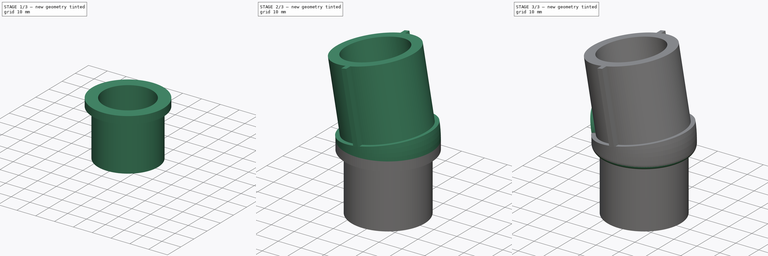
[diagram: build sequence overview — one tinted view per stage of 3, left to right]
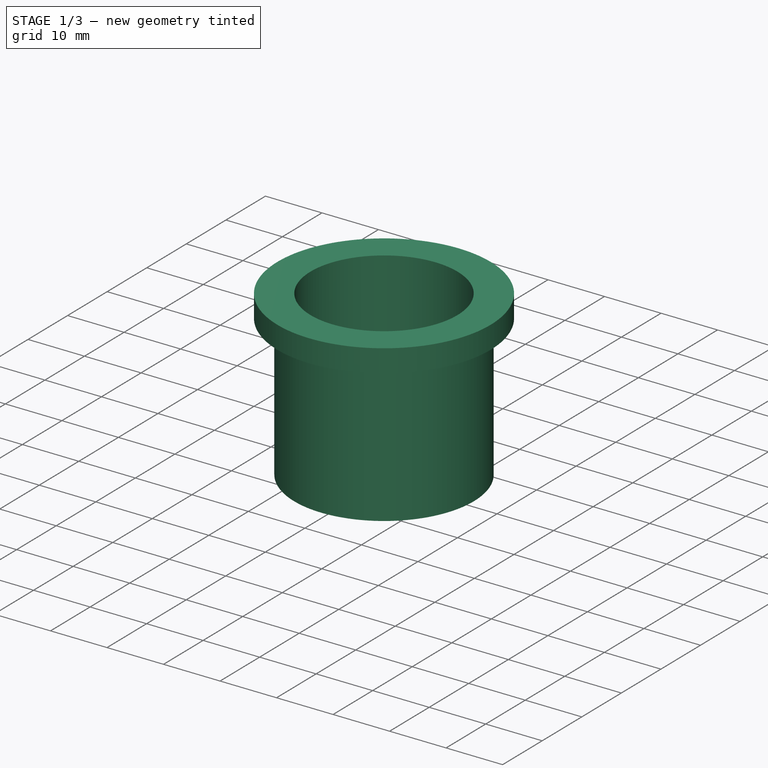
[diagram: stage 1 of 3 — iso view after this stage's code; geometry added in this stage tinted green]
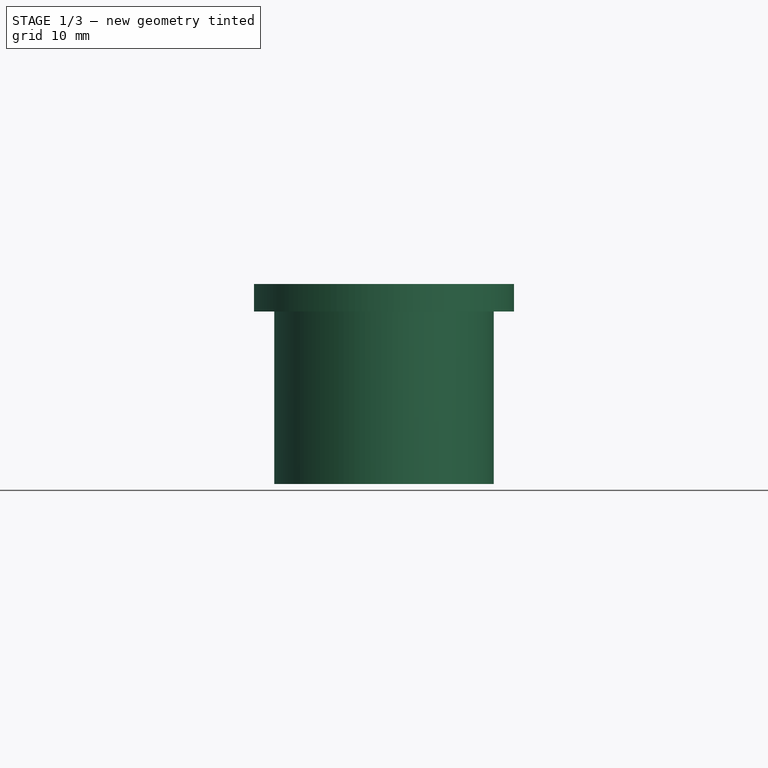
[diagram: stage 1 of 3 — front view after this stage's code; geometry added in this stage tinted green]
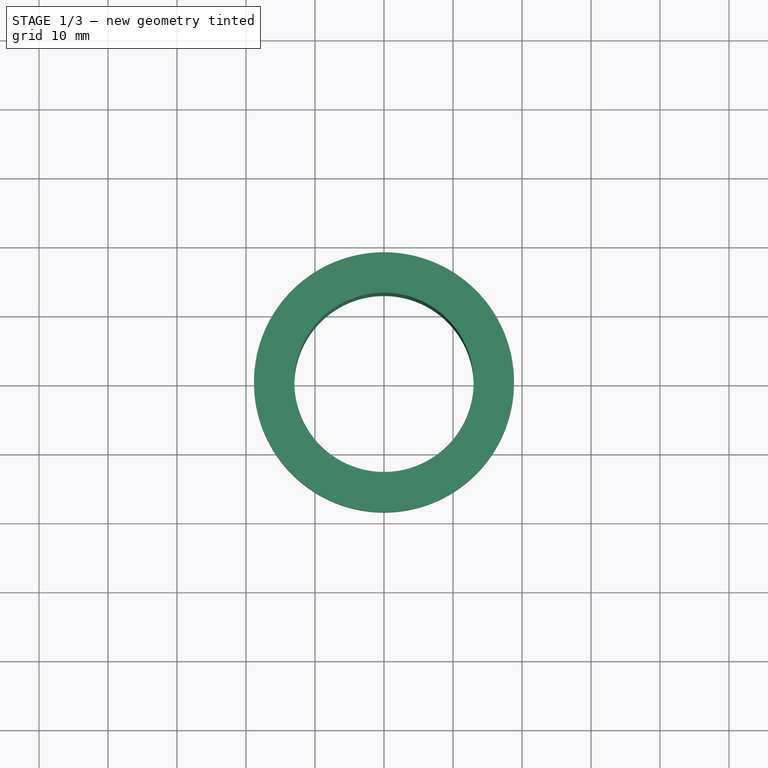
[diagram: stage 1 of 3 — top view after this stage's code; geometry added in this stage tinted green]
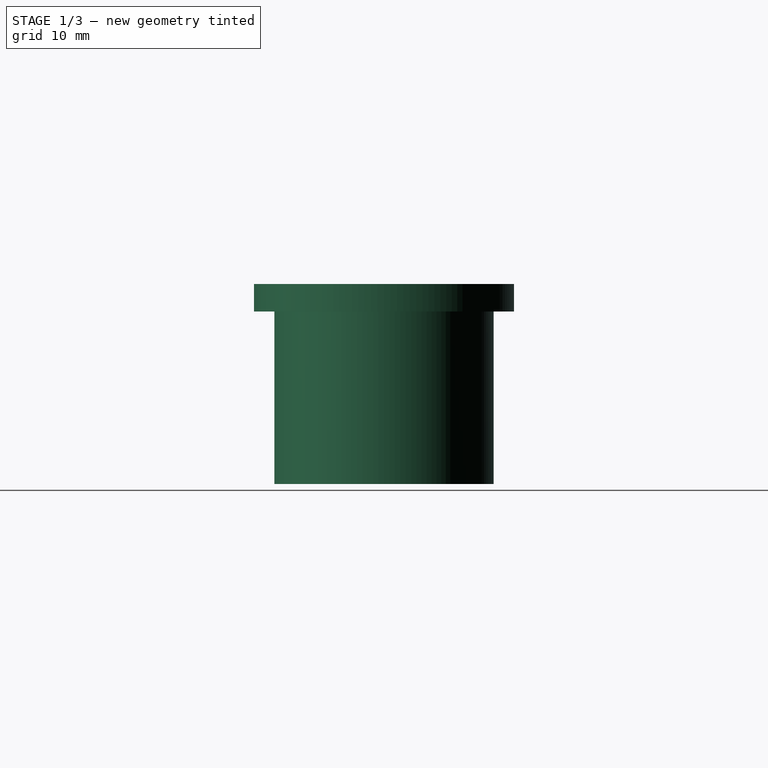
[diagram: stage 1 of 3 — right view after this stage's code; geometry added in this stage tinted green]
FCSTD DOCUMENT  (FreeCAD 0.20R29177 +426 (Git))
Label: Dyson Dustshoe Adapter
License: All rights reserved
LicenseURL: http://en.wikipedia.org/wiki/All_rights_reserved
objects: Sketcher::SketchObject×8, PartDesign::Pad×4, PartDesign::Pocket×2, PartDesign::Plane×2, PartDesign::AdditivePipe×1, PartDesign::Fillet×1, PartDesign::Body×1
note: 27 computed .brp shape members not serialized (recipe doc carries the construction recipe); baked Part::Feature solids carry a one-line shape summary decoded from their .brp

FEATURE [Sketcher::SketchObject] Sketch
  FullyConstrained = true
  MapMode = 5
  Support = -> [XY_Plane]
  sketch-geometry (1):
    g0: Circle CenterX=0 CenterY=0 CenterZ=0 NormalX=0 NormalY=0 NormalZ=1 AngleXU=0 Radius=15.9
  constraints (2):
    c: Coincident(g0,g-1)
    c: Diameter(g0) = 31.8
FEATURE [PartDesign::Pad] Pad
  Direction = (0,0,1)
  Length = 25
  Length2 = 10
  Profile = -> Sketch
  ReferenceAxis = -> Sketch [N_Axis]
  Type = 0
FEATURE [Sketcher::SketchObject] Sketch001
  FullyConstrained = true
  MapMode = 5
  Placement = pos=(0,0,25) rot=(0,0,1;0rad)
  Support = -> [Pad]
  sketch-geometry (1):
    g0: Circle CenterX=0 CenterY=0 CenterZ=0 NormalX=0 NormalY=0 NormalZ=1 AngleXU=0 Radius=18.85
  constraints (2):
    c: Coincident(g0,g-1)
    c: Diameter(g0) = 37.7
FEATURE [PartDesign::Pad] Pad001
  BaseFeature = -> Pad
  Direction = (0,0,1)
  Length = 4
  Length2 = 10
  Profile = -> Sketch001
  ReferenceAxis = -> Sketch001 [N_Axis]
  Type = 0
FEATURE [Sketcher::SketchObject] Sketch002
  FullyConstrained = true
  MapMode = 5
  Placement = pos=(0,0,29) rot=(0,0,1;0rad)
  Support = -> [Pad001]
  sketch-geometry (1):
    g0: Circle CenterX=0 CenterY=0 CenterZ=0 NormalX=0 NormalY=0 NormalZ=1 AngleXU=0 Radius=13
  constraints (2):
    c: Coincident(g0,g-1)
    c: Diameter(g0) = 26
FEATURE [PartDesign::Pocket] Pocket
  BaseFeature = -> Pad001
  Direction = (0,0,-1)
  Length = 5
  Length2 = 5
  Profile = -> Sketch002
  ReferenceAxis = -> Sketch002 [N_Axis]
  Type = 1
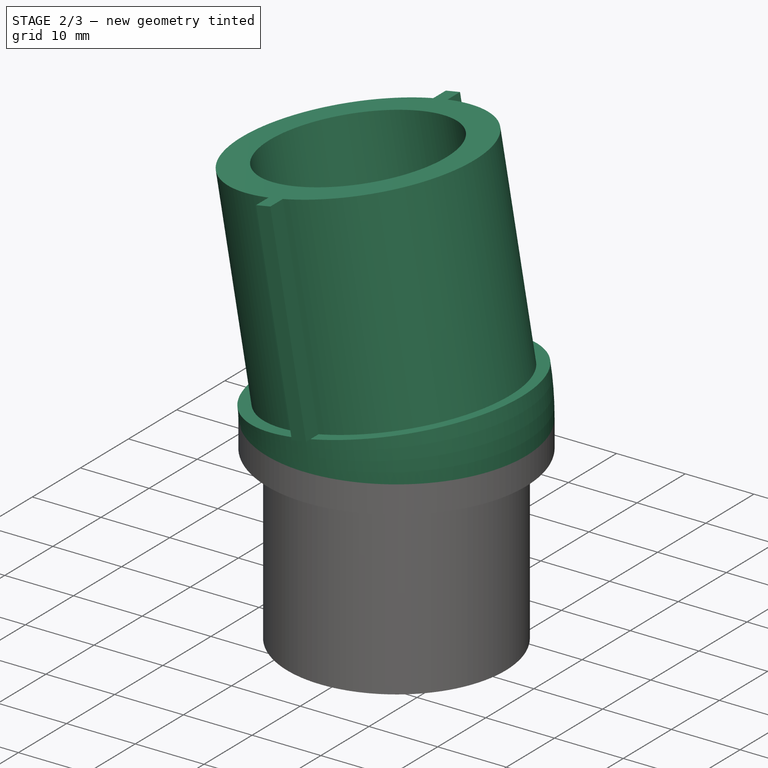
[diagram: stage 2 of 3 — iso view after this stage's code; geometry added in this stage tinted green]
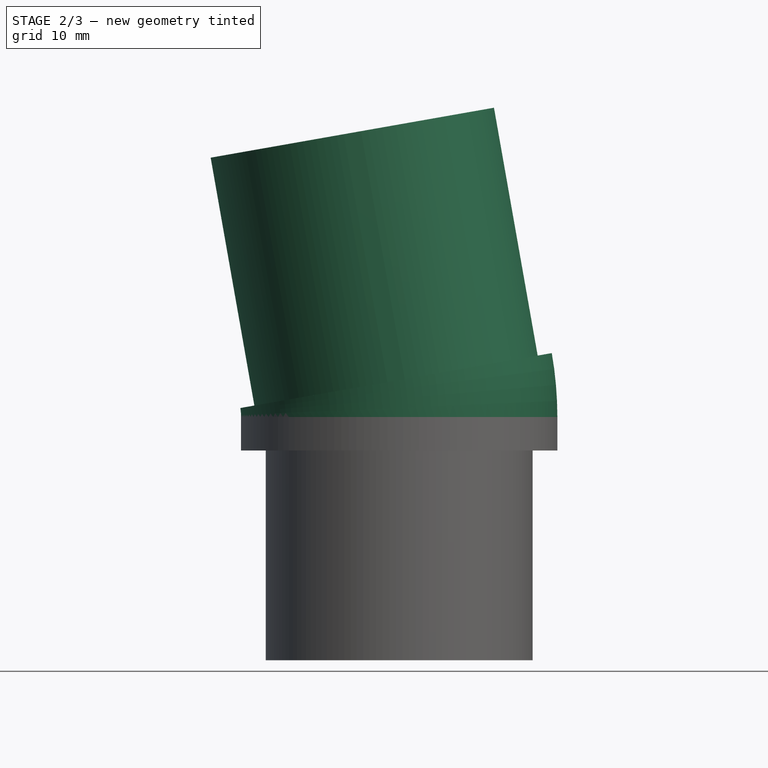
[diagram: stage 2 of 3 — front view after this stage's code; geometry added in this stage tinted green]
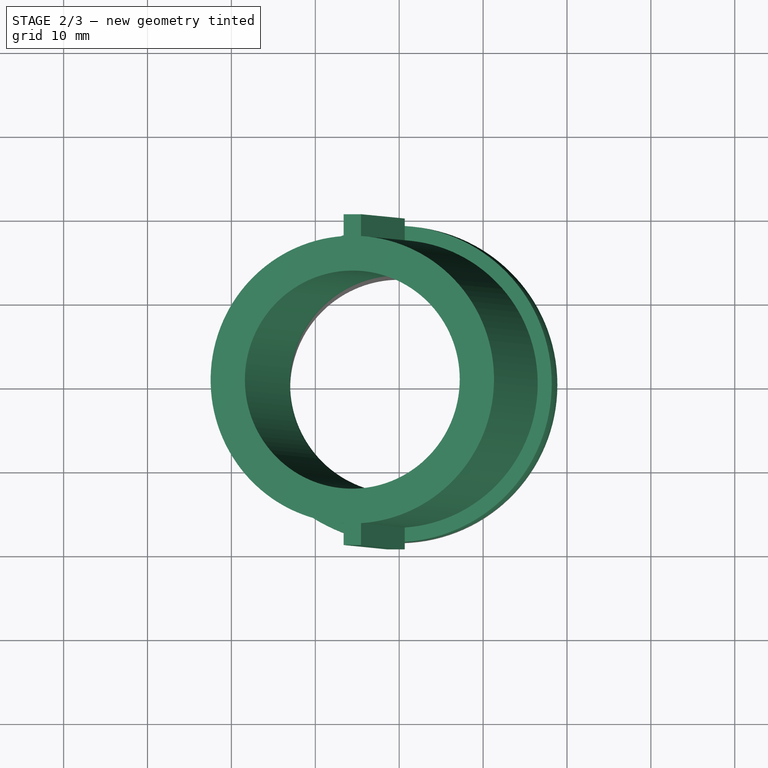
[diagram: stage 2 of 3 — top view after this stage's code; geometry added in this stage tinted green]
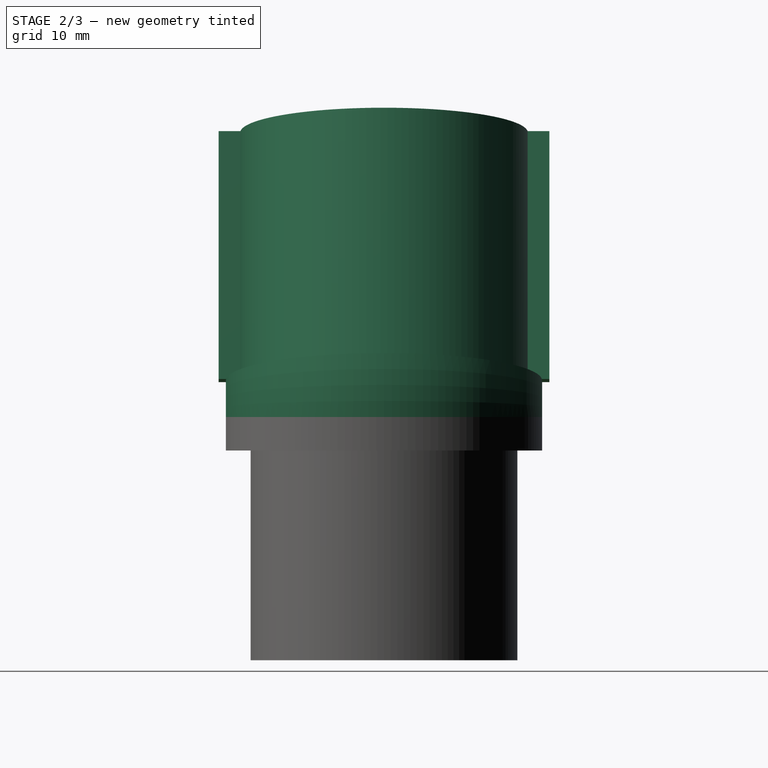
[diagram: stage 2 of 3 — right view after this stage's code; geometry added in this stage tinted green]
FEATURE [Sketcher::SketchObject] Sketch003
  ExternalGeometry = -> [Pocket]
  FullyConstrained = true
  MapMode = 5
  Placement = pos=(0,0,0) rot=(1,0,0;1.5708rad)
  Support = -> [XZ_Plane]
  sketch-geometry (3):
    g0: ArcOfCircle CenterX=-25 CenterY=29 CenterZ=0 NormalX=0 NormalY=0 NormalZ=1 AngleXU=0 Radius=25 StartAngle=0 EndAngle=0.174533
    g1: LineSegment StartX=-0.379806 StartY=33.3412 StartZ=0 EndX=-25 EndY=29 EndZ=0
    g2: LineSegment StartX=-25 StartY=29 StartZ=0 EndX=0 EndY=29 EndZ=0
  constraints (8):
    c: PointOnObject(g0,g-3)
    c: Tangent(g0,g-2) = -1.5708
    c: Radius(g0) = 25
    c: Coincident(g1,g0)
    c: Coincident(g1,g0)
    c: Coincident(g2,g0)
    c: Coincident(g2,g0)
    c: Angle(g2,g1) = 0.174533
FEATURE [PartDesign::Plane] DatumPlane
  Length = 76.4183
  MapMode = 49
  Placement = pos=(-0.379806,7.4e-15,33.3412) rot=(-0.087156,0,0.996195;3.14159rad)
  ResizeMode = 0
  Support = -> [Sketch003]
  Width = 61.4031
FEATURE [Sketcher::SketchObject] Sketch004
  FullyConstrained = false
  MapMode = 5
  Placement = pos=(-0.379806,7.4e-15,33.3412) rot=(-0.087156,0,0.996195;3.14159rad)
  Support = -> [DatumPlane]
  sketch-geometry (9):
    g0: Circle CenterX=0 CenterY=0 CenterZ=0 NormalX=0 NormalY=0 NormalZ=1 AngleXU=0 Radius=13
    g1: ArcOfCircle CenterX=0 CenterY=0 CenterZ=0 NormalX=0 NormalY=0 NormalZ=1 AngleXU=0 Radius=17.15 StartAngle=1.63206 EndAngle=4.65113
    g2: LineSegment StartX=-1.05 StartY=19.7178 StartZ=0 EndX=1.05 EndY=19.7178 EndZ=0
    g3: LineSegment StartX=1.05 StartY=19.7178 StartZ=0 EndX=1.05 EndY=17.1178 EndZ=0
    g4: LineSegment StartX=-1.05 StartY=17.1178 StartZ=0 EndX=-1.05 EndY=19.7178 EndZ=0
    g5: LineSegment StartX=1.05001 StartY=-17.1178 StartZ=0 EndX=1.05001 EndY=-19.7178 EndZ=0
    g6: LineSegment StartX=1.05001 StartY=-19.7178 StartZ=0 EndX=-1.05001 EndY=-19.7178 EndZ=0
    g7: LineSegment StartX=-1.05001 StartY=-19.7178 StartZ=0 EndX=-1.05001 EndY=-17.1178 EndZ=0
    g8: ArcOfCircle CenterX=0 CenterY=0 CenterZ=0 NormalX=0 NormalY=0 NormalZ=1 AngleXU=0 Radius=17.15 StartAngle=4.77365 EndAngle=7.79272
  constraints (24):
    c: Coincident(g0,g-1)
    c: Diameter(g0) = 26
    c: Coincident(g1,g0)
    c: Diameter(g1) = 34.3
    c: Coincident(g2,g3)
    c: Coincident(g4,g2)
    c: Horizontal(g2)
    c: Vertical(g3)
    c: Vertical(g4)
    c: Coincident(g5,g6)
    c: Coincident(g6,g7)
    c: Horizontal(g6)
    c: Vertical(g5)
    c: Vertical(g7)
    c: Coincident(g8,g3)
    c: Coincident(g1,g4)
    c: Symmetric(g8,g1,g-2)
    c: DistanceY(g3,g3) = 2.6
    c: DistanceX(g2,g2) = 2.1
    c: Coincident(g1,g7)
    c: Coincident(g8,g5)
    c: Coincident(g1,g8)
    c: DistanceY(g5,g5) = 2.6
    c: Symmetric(g5,g1,g-2)
FEATURE [Sketcher::SketchObject] Sketch005
  ExternalGeometry = -> [Pocket]
  FullyConstrained = true
  MapMode = 5
  Placement = pos=(0,0,29) rot=(0,0,1;0rad)
  Support = -> [Pocket]
  sketch-geometry (2):
    g0: Circle CenterX=0 CenterY=0 CenterZ=0 NormalX=0 NormalY=0 NormalZ=1 AngleXU=0 Radius=13
    g1: Circle CenterX=0 CenterY=0 CenterZ=0 NormalX=0 NormalY=0 NormalZ=1 AngleXU=0 Radius=18.85
  constraints (4):
    c: Coincident(g0,g-4)
    c: Coincident(g1,g0)
    c: Equal(g1,g-3)
    c: Equal(g0,g-4)
FEATURE [PartDesign::AdditivePipe] AdditivePipe
  AuxilleryCurvelinear = true
  AuxillerySpineTangent = false
  BaseFeature = -> Pocket
  Binormal = (0,0,0)
  Mode = 0
  Profile = -> Sketch005
  Spine = -> Sketch003 [Edge1]
  SpineTangent = false
  Transformation = 0
  Transition = 0
FEATURE [PartDesign::Pad] Pad002
  BaseFeature = -> AdditivePipe
  Direction = (-0.173648,0,0.984808)
  Length = 30
  Length2 = 10
  Profile = -> Sketch004
  ReferenceAxis = -> Sketch004 [N_Axis]
  Type = 0
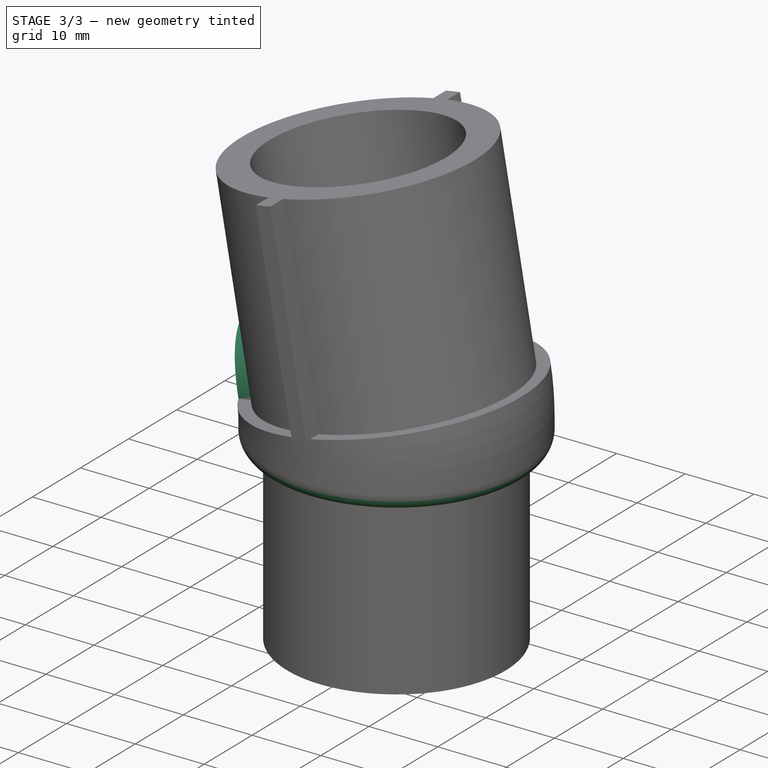
[diagram: stage 3 of 3 — iso view after this stage's code; geometry added in this stage tinted green]
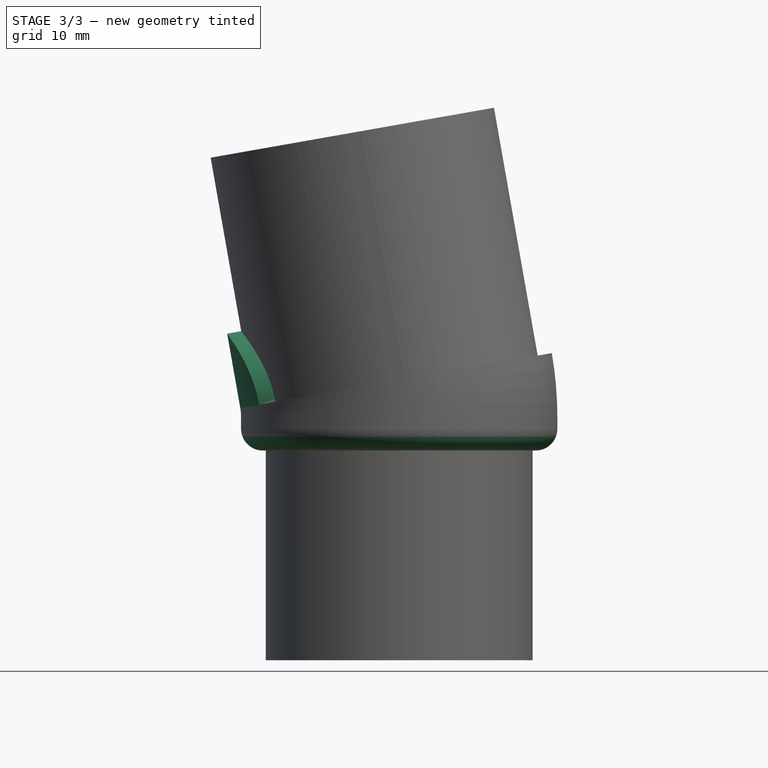
[diagram: stage 3 of 3 — front view after this stage's code; geometry added in this stage tinted green]
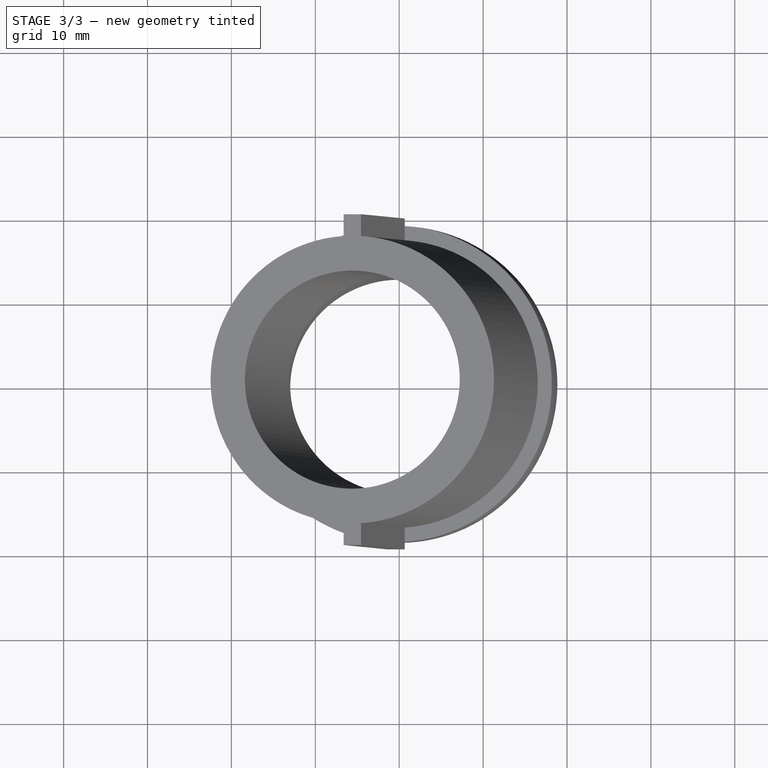
[diagram: stage 3 of 3 — top view after this stage's code; geometry added in this stage tinted green]
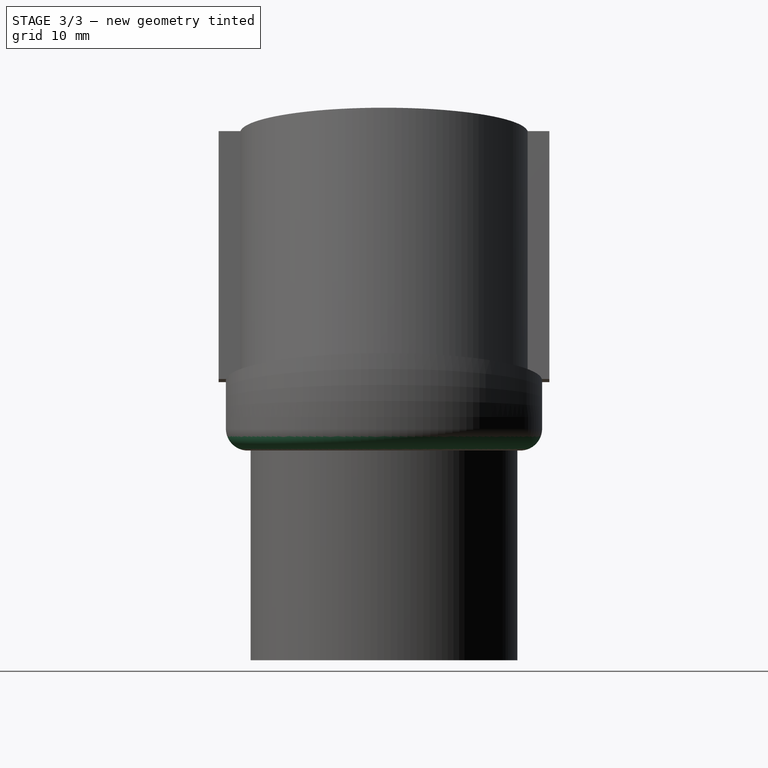
[diagram: stage 3 of 3 — right view after this stage's code; geometry added in this stage tinted green]
FEATURE [PartDesign::Plane] DatumPlane001
  AttachmentOffset = pos=(0,0,2) rot=(0,0,1;0rad)
  Length = 112.156
  MapMode = 45
  Placement = pos=(-16.1217,-2.153e-06,45.7969) rot=(0.766044,0,-0.642788;3.14159rad)
  ResizeMode = 0
  Support = -> [Pad002]
  Width = 64.0104
FEATURE [Sketcher::SketchObject] Sketch006
  ExternalGeometry = -> [Pad002]
  FullyConstrained = true
  MapMode = 5
  Placement = pos=(-16.1217,-2.153e-06,45.7969) rot=(0.766044,0,-0.642788;3.14159rad)
  Support = -> [DatumPlane001]
  sketch-geometry (2):
    g0: ArcOfCircle CenterX=15 CenterY=2.09816e-06 CenterZ=0 NormalX=0 NormalY=0 NormalZ=1 AngleXU=0 Radius=9 StartAngle=1.5708 EndAngle=4.71239
    g1: LineSegment StartX=15 StartY=9 StartZ=0 EndX=15 EndY=-9 EndZ=0
  constraints (6):
    c: Coincident(g0,g-4)
    c: PointOnObject(g0,g-3)
    c: PointOnObject(g0,g-4)
    c: Diameter(g0) = 18
    c: Coincident(g1,g0)
    c: Coincident(g1,g0)
FEATURE [PartDesign::Pad] Pad003
  BaseFeature = -> Pad002
  Direction = (-0.984808,-1.61397e-07,-0.173648)
  Length = 6
  Length2 = 10
  Profile = -> Sketch006
  ReferenceAxis = -> Sketch006 [N_Axis]
  Type = 0
FEATURE [Sketcher::SketchObject] Sketch007
  ExternalGeometry = -> [Pad003]
  FullyConstrained = true
  MapMode = 5
  Placement = pos=(-0.379806,7.4e-15,33.3412) rot=(-0.087156,0,0.996195;3.14159rad)
  Support = -> [DatumPlane]
  sketch-geometry (4):
    g0: ArcOfCircle CenterX=9e-16 CenterY=6.4e-15 CenterZ=0 NormalX=0 NormalY=0 NormalZ=1 AngleXU=0 Radius=18.85 StartAngle=5.66009 EndAngle=6.90628
    g1: LineSegment StartX=15.3076 StartY=11 StartZ=0 EndX=23.3076 EndY=11 EndZ=0
    g2: LineSegment StartX=23.3076 StartY=11 StartZ=0 EndX=23.3076 EndY=-11 EndZ=0
    g3: LineSegment StartX=23.3076 StartY=-11 StartZ=0 EndX=15.3076 EndY=-11 EndZ=0
  constraints (12):
    c: Vertical(g2)
    c: DistanceX(g1,g1) = 8
    c: Coincident(g2,g1)
    c: Coincident(g2,g3)
    c: Horizontal(g1)
    c: Horizontal(g3)
    c: Coincident(g0,g3)
    c: Coincident(g0,g1)
    c: PointOnObject(g0,g-4)
    c: Coincident(g0,g-4)
    c: Symmetric(g0,g0,g-1)
    c: DistanceY(g2,g2) = 22
FEATURE [PartDesign::Pocket] Pocket001
  BaseFeature = -> Pad003
  Direction = (0.173648,0,-0.984808)
  Length = 11
  Length2 = 5
  Profile = -> Sketch007
  ReferenceAxis = -> Sketch007 [N_Axis]
  Reversed = true
  Type = 0
FEATURE [PartDesign::Fillet] Fillet
  Base = -> Pocket001 [Edge2]
  BaseFeature = -> Pocket001
  Radius = 2.6
  SupportTransform = false
  UseAllEdges = false
FEATURE [PartDesign::Body] Body
  Group = -> [Sketch,Pad,Sketch001,Pad001,Sketch002,Pocket,Sketch003,DatumPlane,Sketch005,AdditivePipe,Sketch004,Pad002,DatumPlane001,Sketch006,Pad003,Sketch007,Pocket001,Fillet]
  Origin = -> Origin
  Tip = -> Fillet
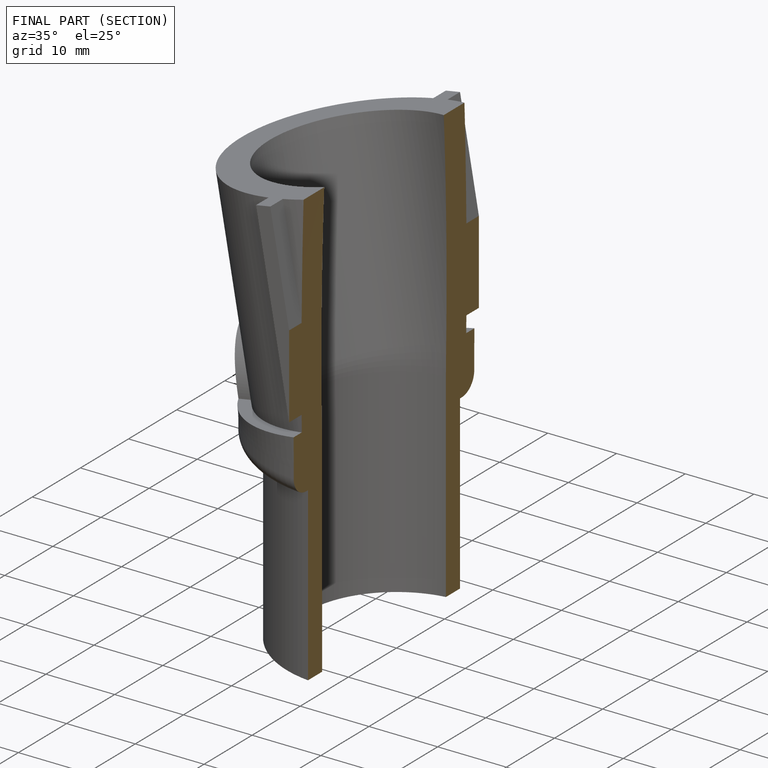
[diagram: finished part — half-section view (interior)]
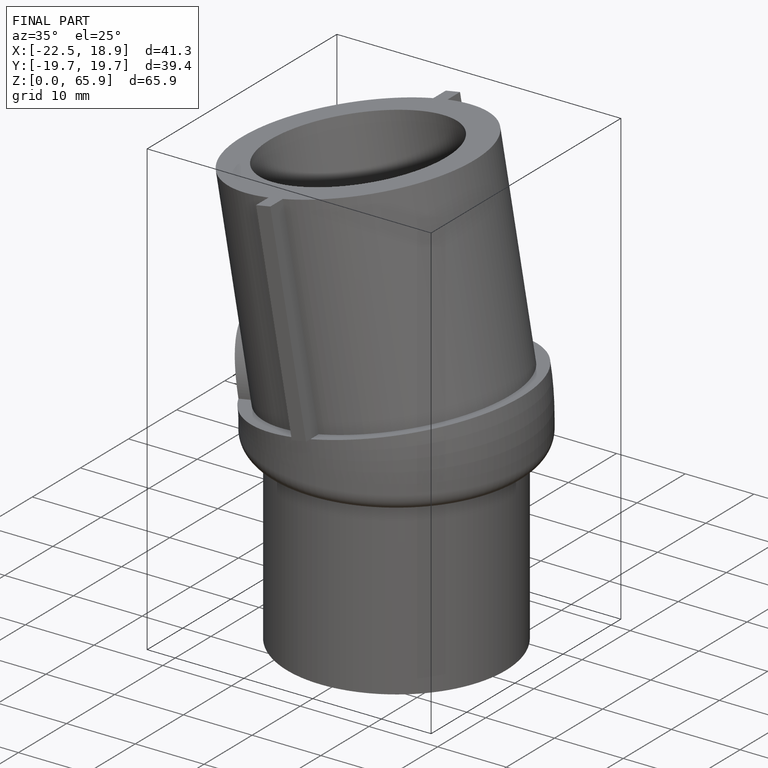
[diagram: finished part — iso view with bounding-box wireframe]
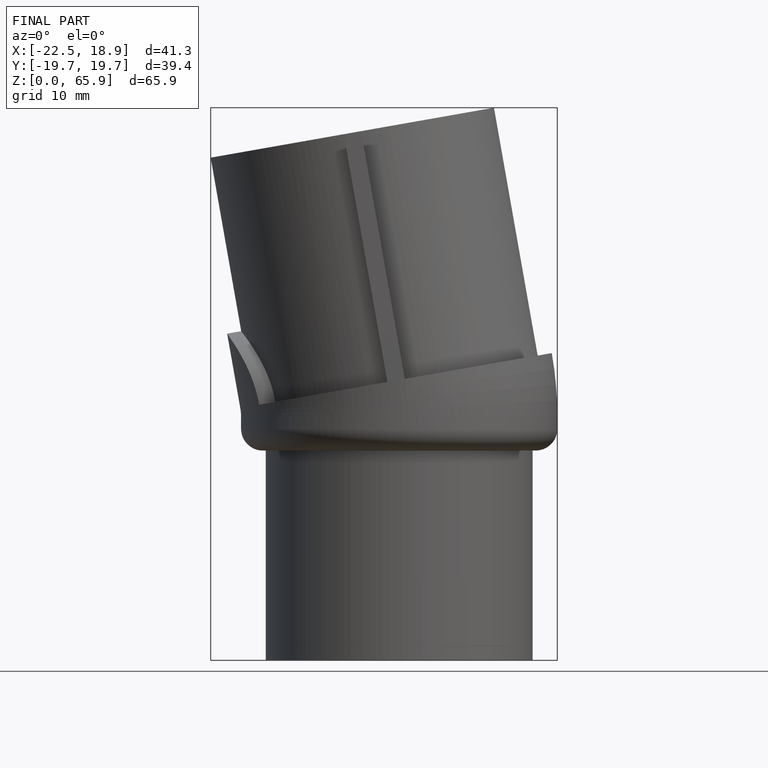
[diagram: finished part — front view with bounding-box wireframe]
